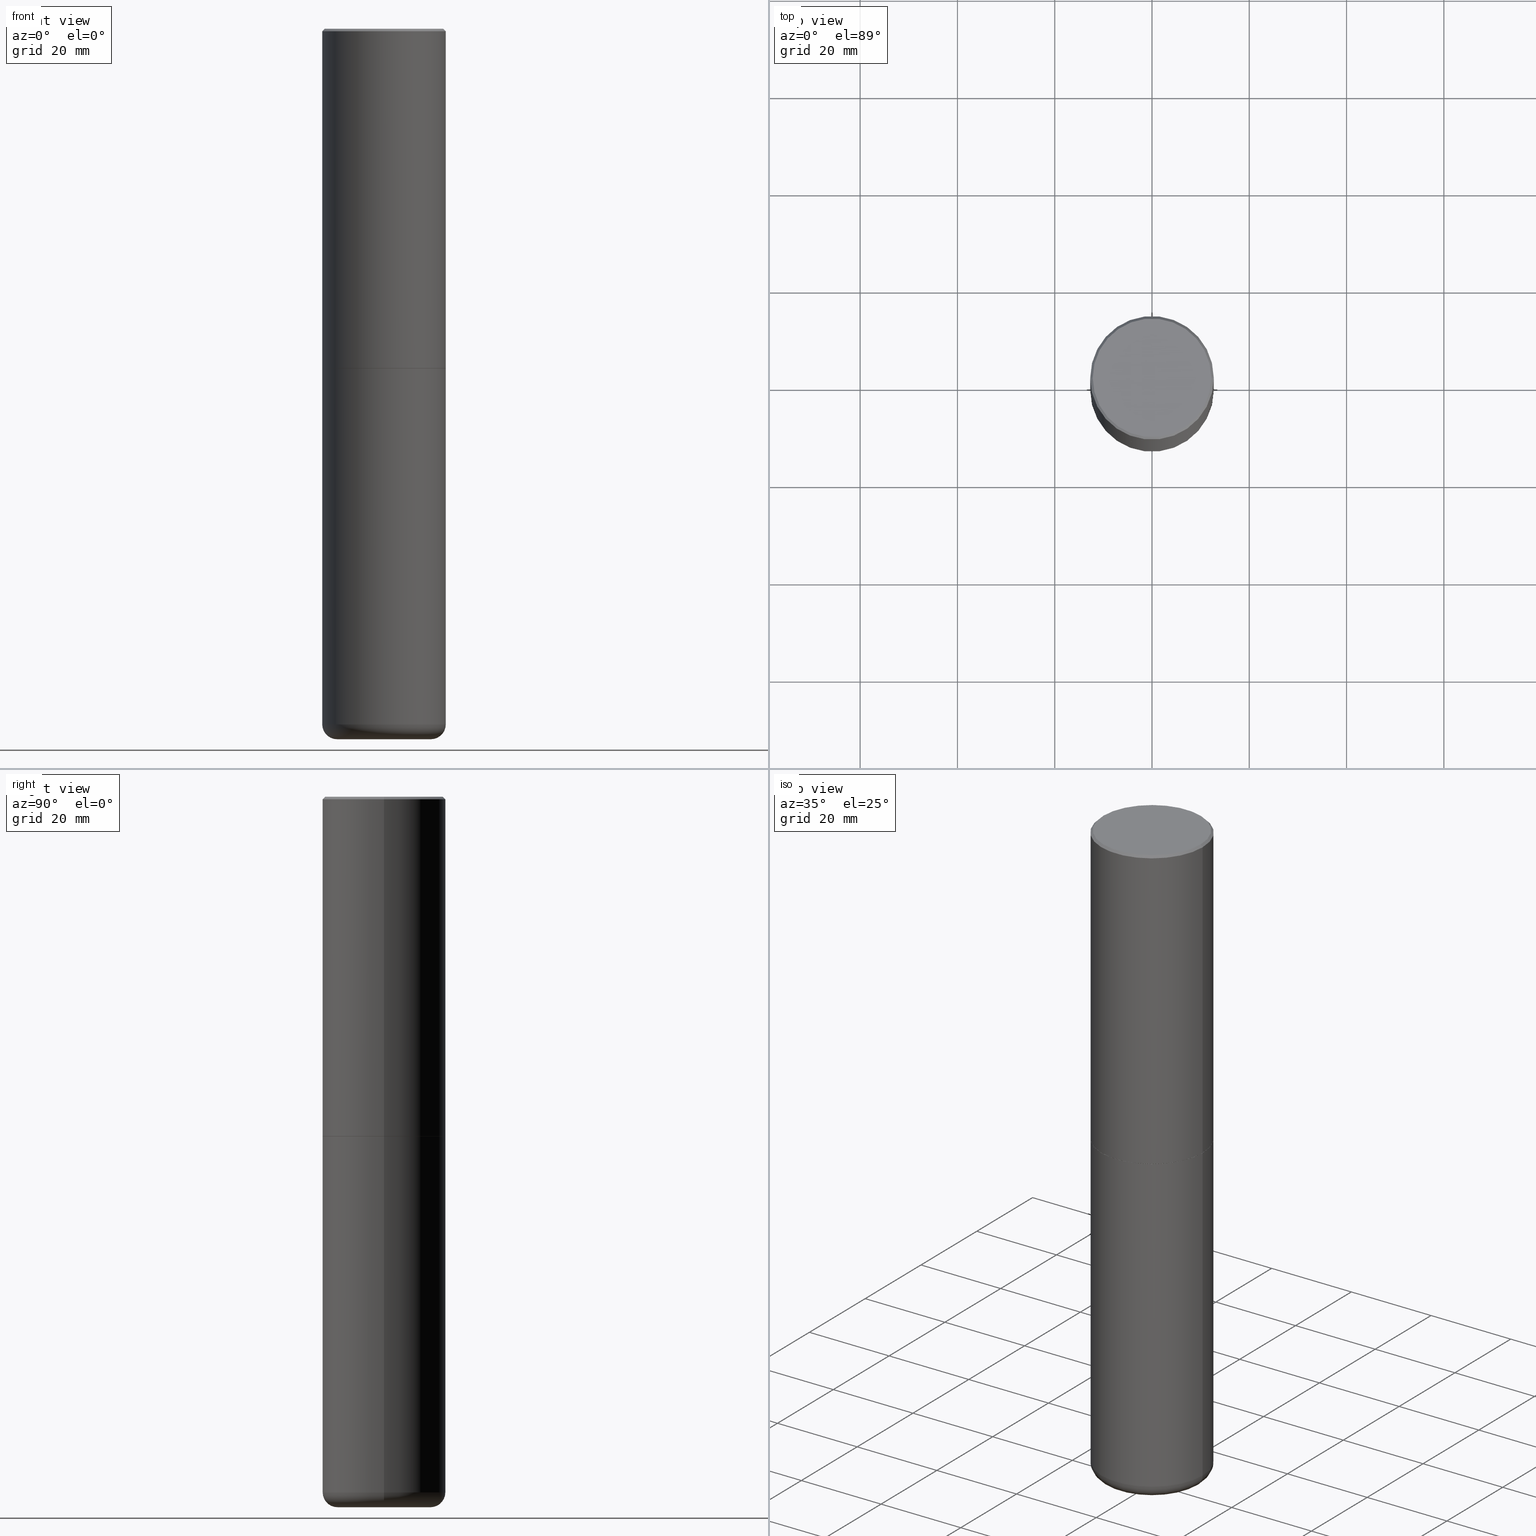
[diagram: canonical four-view strip — front | top / right | iso, engineering-drawing reading convention]
A machine part, canonical four-view strip (front | top / right | iso — engineering-drawing reading convention). The complete STEP part file that produces these views, byte-faithful:
ISO-10303-21;
HEADER;
FILE_DESCRIPTION (( 'STEP AP203' ),
    '1' );
FILE_NAME ('77491.STEP',
    '2024-05-02T19:49:53',
    ( '' ),
    ( '' ),
    'SwSTEP 2.0',
    'SolidWorks 2023',
    '' );
FILE_SCHEMA (( 'CONFIG_CONTROL_DESIGN' ));
ENDSEC;

DATA;
#1 = VERTEX_POINT ( 'NONE', #17 ) ;
#2 = DIRECTION ( 'NONE',  ( 1.000000000000000000, 0.000000000000000000, 0.000000000000000000 ) ) ;
#3 = FACE_OUTER_BOUND ( 'NONE', #75, .T. ) ;
#4 = VECTOR ( 'NONE', #201, 39.37007874015748143 ) ;
#5 = DIRECTION ( 'NONE',  ( -1.000000000000000000, 7.105427357600997914E-15, 0.000000000000000000 ) ) ;
#6 = CALENDAR_DATE ( 2024, 2, 5 ) ;
#7 = VECTOR ( 'NONE', #277, 39.37007874015748143 ) ;
#8 = ORIENTED_EDGE ( 'NONE', *, *, #94, .F. ) ;
#9 = PERSON_AND_ORGANIZATION_ROLE ( 'creator' ) ;
#10 = CYLINDRICAL_SURFACE ( 'NONE', #343, 0.5000000000000001110 ) ;
#11 = DIRECTION ( 'NONE',  ( -2.445468806185136597E-29, 3.491481338843145583E-15, 1.000000000000000000 ) ) ;
#12 = CARTESIAN_POINT ( 'NONE',  ( 0.000000000000000000, 0.000000000000000000, 0.000000000000000000 ) ) ;
#13 = EDGE_LOOP ( 'NONE', ( #155, #271, #286, #25 ) ) ;
#14 = PERSON_AND_ORGANIZATION_ROLE ( 'creator' ) ;
#15 = FACE_OUTER_BOUND ( 'NONE', #307, .T. ) ;
#16 = CC_DESIGN_DATE_AND_TIME_ASSIGNMENT ( #130, #261, ( #217 ) ) ;
#17 = CARTESIAN_POINT ( 'NONE',  ( 0.4800000000000000933, -3.396558832296482493E-15, -1.067128122524866809E-16 ) ) ;
#18 = APPROVAL_DATE_TIME ( #200, #33 ) ;
#19 = CARTESIAN_POINT ( 'NONE',  ( 6.725039217009123399E-29, -9.601573681818648281E-15, -2.749999999999999556 ) ) ;
#20 = AXIS2_PLACEMENT_3D ( 'NONE', #131, #344, #28 ) ;
#21 = PRODUCT_DEFINITION_FORMATION_WITH_SPECIFIED_SOURCE ( 'ANY', '', #172, .NOT_KNOWN. ) ;
#22 = AXIS2_PLACEMENT_3D ( 'NONE', #392, #99, #119 ) ;
#23 = DIRECTION ( 'NONE',  ( -0.7071067811867406405, 7.493145998871051513E-15, 0.7071067811863543939 ) ) ;
#24 = DIRECTION ( 'NONE',  ( 1.000000000000000000, -6.982962677686266711E-15, 4.876176775795935793E-29 ) ) ;
#25 = ORIENTED_EDGE ( 'NONE', *, *, #209, .F. ) ;
#26 = EDGE_CURVE ( 'NONE', #113, #124, #36, .T. ) ;
#27 = DATE_AND_TIME ( #320, #415 ) ;
#28 = DIRECTION ( 'NONE',  ( 1.000000000000000000, -6.982962677686273021E-15, 0.000000000000000000 ) ) ;
#29 = DIRECTION ( 'NONE',  ( -6.982962677686266711E-15, -1.000000000000000000, 3.491481338843145583E-15 ) ) ;
#30 = CARTESIAN_POINT ( 'NONE',  ( -0.4989999999999999991, -6.055965430375748360E-15, -2.749999999999999556 ) ) ;
#31 = DIRECTION ( 'NONE',  ( -2.445468806185136597E-29, 3.491481338843145583E-15, 1.000000000000000000 ) ) ;
#32 = CIRCLE ( 'NONE', #20, 0.3799999999999999489 ) ;
#33 = APPROVAL ( #92, 'UNSPECIFIED' ) ;
#34 = DESIGN_CONTEXT ( 'detailed design', #74, 'design' ) ;
#35 =( LENGTH_UNIT ( ) NAMED_UNIT ( * ) SI_UNIT ( $, .METRE. ) );
#36 = CIRCLE ( 'NONE', #198, 0.5000000000000000000 ) ;
#37 = CIRCLE ( 'NONE', #140, 0.5000000000000000000 ) ;
#38 = EDGE_CURVE ( 'NONE', #363, #226, #64, .T. ) ;
#39 = EDGE_LOOP ( 'NONE', ( #339, #73 ) ) ;
#40 = LINE ( 'NONE', #169, #352 ) ;
#41 = EDGE_LOOP ( 'NONE', ( #58, #311, #283, #190 ) ) ;
#42 = APPROVAL ( #147, 'UNSPECIFIED' ) ;
#43 = ADVANCED_FACE ( 'NONE', ( #146 ), #345, .T. ) ;
#44 = CC_DESIGN_DATE_AND_TIME_ASSIGNMENT ( #27, #117, ( #267 ) ) ;
#45 = CIRCLE ( 'NONE', #170, 0.4800000000000000933 ) ;
#46 =( GEOMETRIC_REPRESENTATION_CONTEXT ( 3 ) GLOBAL_UNCERTAINTY_ASSIGNED_CONTEXT ( ( #266 ) ) GLOBAL_UNIT_ASSIGNED_CONTEXT ( ( #245, #297, #416 ) ) REPRESENTATION_CONTEXT ( 'NONE', 'WORKASPACE' ) );
#47 = ORIENTED_EDGE ( 'NONE', *, *, #70, .F. ) ;
#48 = COORDINATED_UNIVERSAL_TIME_OFFSET ( 5, 0, .BEHIND. ) ;
#49 = VECTOR ( 'NONE', #143, 39.37007874015748143 ) ;
#50 = ORIENTED_EDGE ( 'NONE', *, *, #154, .F. ) ;
#51 = DATE_AND_TIME ( #340, #239 ) ;
#52 = PLANE ( 'NONE',  #111 ) ;
#53 = CC_DESIGN_SECURITY_CLASSIFICATION ( #217, ( #21 ) ) ;
#54 = DIRECTION ( 'NONE',  ( 2.445468806185136597E-29, -3.491481338843145583E-15, -1.000000000000000000 ) ) ;
#55 = ORIENTED_EDGE ( 'NONE', *, *, #178, .F. ) ;
#56 = DIRECTION ( 'NONE',  ( 1.000000000000000000, -6.982962677686266711E-15, 0.000000000000000000 ) ) ;
#57 = PRODUCT_DEFINITION_SHAPE ( 'NONE', 'NONE',  #267 ) ;
#58 = ORIENTED_EDGE ( 'NONE', *, *, #76, .F. ) ;
#59 = COORDINATED_UNIVERSAL_TIME_OFFSET ( 5, 0, .BEHIND. ) ;
#60 = DIRECTION ( 'NONE',  ( 1.000000000000000000, -6.982962677686266711E-15, 0.000000000000000000 ) ) ;
#61 = CC_DESIGN_PERSON_AND_ORGANIZATION_ASSIGNMENT ( #315, #9, ( #21 ) ) ;
#62 = EDGE_LOOP ( 'NONE', ( #391, #356, #301, #47 ) ) ;
#63 = APPROVAL_DATE_TIME ( #51, #42 ) ;
#64 = CIRCLE ( 'NONE', #388, 0.1199999999999998845 ) ;
#65 = CARTESIAN_POINT ( 'NONE',  ( 2.609628535838049452E-45, -3.725857925951117973E-31, -1.067128122525102851E-16 ) ) ;
#66 = CARTESIAN_POINT ( 'NONE',  ( 0.000000000000000000, 0.000000000000000000, 0.000000000000000000 ) ) ;
#67 = EDGE_CURVE ( 'NONE', #124, #113, #100, .T. ) ;
#68 = AXIS2_PLACEMENT_3D ( 'NONE', #168, #54, #188 ) ;
#69 = APPROVAL_PERSON_ORGANIZATION ( #373, #42, #332 ) ;
#70 = EDGE_CURVE ( 'NONE', #329, #218, #234, .T. ) ;
#71 = CLOSED_SHELL ( 'NONE', ( #380, #43, #141, #136, #276, #83 ) ) ;
#72 = CARTESIAN_POINT ( 'NONE',  ( 0.3799999999999999489, -2.231056575520768651E-14, -5.629999999999999893 ) ) ;
#73 = ORIENTED_EDGE ( 'NONE', *, *, #154, .T. ) ;
#74 = APPLICATION_CONTEXT ( 'configuration controlled 3d designs of mechanical parts and assemblies' ) ;
#75 = EDGE_LOOP ( 'NONE', ( #385, #121, #194, #84 ) ) ;
#76 = EDGE_CURVE ( 'NONE', #1, #107, #40, .T. ) ;
#77 = CARTESIAN_POINT ( 'NONE',  ( 1.406144563556453543E-28, -2.007601769834808621E-14, -5.750000000000000000 ) ) ;
#78 = TOROIDAL_SURFACE ( 'NONE', #317, 0.3799999999999999489, 0.1199999999999998845 ) ;
#79 = FACE_OUTER_BOUND ( 'NONE', #268, .T. ) ;
#80 = EDGE_LOOP ( 'NONE', ( #50, #222, #186, #389 ) ) ;
#81 = CARTESIAN_POINT ( 'NONE',  ( 0.3799999999999999489, -2.272954351586886946E-14, -5.750000000000000000 ) ) ;
#82 = APPLICATION_CONTEXT ( 'configuration controlled 3d designs of mechanical parts and assemblies' ) ;
#83 = ADVANCED_FACE ( 'NONE', ( #409 ), #242, .T. ) ;
#84 = ORIENTED_EDGE ( 'NONE', *, *, #325, .F. ) ;
#85 = PERSON_AND_ORGANIZATION ( #171, #176 ) ;
#86 = CARTESIAN_POINT ( 'NONE',  ( 1.376798937882231913E-28, -1.965703993768690642E-14, -5.629999999999999893 ) ) ;
#87 = DIRECTION ( 'NONE',  ( -2.445468806185136597E-29, 3.491481338843145583E-15, 1.000000000000000000 ) ) ;
#88 = ORIENTED_EDGE ( 'NONE', *, *, #418, .T. ) ;
#89 = DIRECTION ( 'NONE',  ( 1.000000000000000000, -6.982962677686267499E-15, 4.876176775795935793E-29 ) ) ;
#90 = CARTESIAN_POINT ( 'NONE',  ( -0.5000000000000000000, -1.107659313095227642E-14, -2.749999999999999556 ) ) ;
#91 = ORIENTED_EDGE ( 'NONE', *, *, #209, .T. ) ;
#92 = APPROVAL_STATUS ( 'not_yet_approved' ) ;
#93 = ADVANCED_FACE ( 'NONE', ( #15 ), #264, .F. ) ;
#94 = EDGE_CURVE ( 'NONE', #107, #350, #300, .T. ) ;
#95 = DIRECTION ( 'NONE',  ( 1.000000000000000000, -6.982962677686266711E-15, 4.874852205035275907E-29 ) ) ;
#96 = ORIENTED_EDGE ( 'NONE', *, *, #174, .T. ) ;
#97 = APPROVAL_DATE_TIME ( #304, #212 ) ;
#98 = LINE ( 'NONE', #405, #4 ) ;
#99 = DIRECTION ( 'NONE',  ( -2.445468806185136597E-29, 3.491481338843145583E-15, 1.000000000000000000 ) ) ;
#100 = CIRCLE ( 'NONE', #137, 0.5000000000000000000 ) ;
#101 = CIRCLE ( 'NONE', #285, 0.3799999999999999489 ) ;
#102 = DIRECTION ( 'NONE',  ( 1.000000000000000000, -6.982962677686267499E-15, 4.876176775795935793E-29 ) ) ;
#103 = FACE_OUTER_BOUND ( 'NONE', #402, .T. ) ;
#104 = EDGE_CURVE ( 'NONE', #109, #107, #98, .T. ) ;
#105 = VECTOR ( 'NONE', #23, 39.37007874015748143 ) ;
#106 = AXIS2_PLACEMENT_3D ( 'NONE', #12, #153, #24 ) ;
#107 = VERTEX_POINT ( 'NONE', #228 ) ;
#108 = CC_DESIGN_PERSON_AND_ORGANIZATION_ASSIGNMENT ( #360, #161, ( #21 ) ) ;
#109 = VERTEX_POINT ( 'NONE', #163 ) ;
#110 = CARTESIAN_POINT ( 'NONE',  ( 6.722593748202938917E-29, -9.598082200479805274E-15, -2.748999999999999666 ) ) ;
#111 = AXIS2_PLACEMENT_3D ( 'NONE', #390, #254, #192 ) ;
#112 = CIRCLE ( 'NONE', #383, 0.5000000000000003331 ) ;
#113 = VERTEX_POINT ( 'NONE', #321 ) ;
#114 = COORDINATED_UNIVERSAL_TIME_OFFSET ( 5, 0, .BEHIND. ) ;
#115 = DIRECTION ( 'NONE',  ( -2.445468806185136597E-29, 3.491481338843145583E-15, 1.000000000000000000 ) ) ;
#116 = CARTESIAN_POINT ( 'NONE',  ( 6.725039217009123399E-29, -9.601573681818648281E-15, -2.749999999999999556 ) ) ;
#117 = DATE_TIME_ROLE ( 'creation_date' ) ;
#118 = DIRECTION ( 'NONE',  ( 1.000000000000000000, -6.982962677686269077E-15, 0.000000000000000000 ) ) ;
#119 = DIRECTION ( 'NONE',  ( 1.000000000000000000, -6.982962677686263555E-15, 0.000000000000000000 ) ) ;
#120 = PRODUCT_RELATED_PRODUCT_CATEGORY ( 'detail', '', ( #172 ) ) ;
#121 = ORIENTED_EDGE ( 'NONE', *, *, #328, .T. ) ;
#122 = CARTESIAN_POINT ( 'NONE',  ( -0.4999999999999998335, -1.610432625888640549E-14, -5.629999999999999893 ) ) ;
#123 = AXIS2_PLACEMENT_3D ( 'NONE', #401, #127, #135 ) ;
#124 = VERTEX_POINT ( 'NONE', #90 ) ;
#125 = PERSON_AND_ORGANIZATION ( #171, #176 ) ;
#126 = DIRECTION ( 'NONE',  ( 2.445468806185136597E-29, -3.491481338843145583E-15, -1.000000000000000000 ) ) ;
#127 = DIRECTION ( 'NONE',  ( 2.438088387897960049E-29, -3.491481338843145188E-15, -1.000000000000000000 ) ) ;
#128 = CARTESIAN_POINT ( 'NONE',  ( -0.3799999999999999489, -1.674014078067305588E-14, -5.750000000000000000 ) ) ;
#129 = DIRECTION ( 'NONE',  ( -2.445468806185136597E-29, 3.491481338843145583E-15, 1.000000000000000000 ) ) ;
#130 = DATE_AND_TIME ( #6, #269 ) ;
#131 = CARTESIAN_POINT ( 'NONE',  ( 1.406144563556453543E-28, -2.007601769834808621E-14, -5.750000000000000000 ) ) ;
#132 = DIRECTION ( 'NONE',  ( -1.000000000000000000, 6.982962677686265922E-15, -4.876176775795935793E-29 ) ) ;
#133 = AXIS2_PLACEMENT_3D ( 'NONE', #66, #378, #102 ) ;
#134 = CIRCLE ( 'NONE', #400, 0.4989999999999999991 ) ;
#135 = DIRECTION ( 'NONE',  ( -1.000000000000000000, 6.982962677686265922E-15, -4.876176775795935793E-29 ) ) ;
#136 = ADVANCED_FACE ( 'NONE', ( #103 ), #157, .T. ) ;
#137 = AXIS2_PLACEMENT_3D ( 'NONE', #116, #31, #236 ) ;
#138 = DIRECTION ( 'NONE',  ( -2.445468806185136597E-29, 3.491481338843145583E-15, 1.000000000000000000 ) ) ;
#139 = AXIS2_PLACEMENT_3D ( 'NONE', #310, #11, #281 ) ;
#140 = AXIS2_PLACEMENT_3D ( 'NONE', #259, #302, #60 ) ;
#141 = ADVANCED_FACE ( 'NONE', ( #224 ), #289, .F. ) ;
#142 = ORIENTED_EDGE ( 'NONE', *, *, #294, .F. ) ;
#143 = DIRECTION ( 'NONE',  ( -0.7071067811865461294, 2.468850131082242072E-15, -0.7071067811865489050 ) ) ;
#144 = AXIS2_PLACEMENT_3D ( 'NONE', #72, #29, #167 ) ;
#145 = CC_DESIGN_APPROVAL ( #42, ( #217 ) ) ;
#146 = FACE_OUTER_BOUND ( 'NONE', #62, .T. ) ;
#147 = APPROVAL_STATUS ( 'not_yet_approved' ) ;
#148 = FACE_OUTER_BOUND ( 'NONE', #299, .T. ) ;
#149 = FACE_OUTER_BOUND ( 'NONE', #13, .T. ) ;
#150 = VERTEX_POINT ( 'NONE', #407 ) ;
#151 = CARTESIAN_POINT ( 'NONE',  ( 0.000000000000000000, 0.000000000000000000, 0.000000000000000000 ) ) ;
#152 = CYLINDRICAL_SURFACE ( 'NONE', #133, 0.5000000000000001110 ) ;
#153 = DIRECTION ( 'NONE',  ( -2.445468806185136597E-29, 3.491481338843145583E-15, 1.000000000000000000 ) ) ;
#154 = EDGE_CURVE ( 'NONE', #1, #331, #45, .T. ) ;
#155 = ORIENTED_EDGE ( 'NONE', *, *, #417, .T. ) ;
#156 = DIRECTION ( 'NONE',  ( -2.445468806185136877E-29, 3.491481338843145188E-15, 1.000000000000000000 ) ) ;
#157 = CYLINDRICAL_SURFACE ( 'NONE', #274, 0.5000000000000000000 ) ;
#158 = CONICAL_SURFACE ( 'NONE', #410, 0.5000000000000000000, 0.7853981633974463916 ) ;
#159 = CONICAL_SURFACE ( 'NONE', #68, 0.5000000000000000000, 0.7853981633974463916 ) ;
#160 = CARTESIAN_POINT ( 'NONE',  ( 6.725039217009123399E-29, -9.601573681818648281E-15, -2.749999999999999556 ) ) ;
#161 = PERSON_AND_ORGANIZATION_ROLE ( 'design_supplier' ) ;
#162 = CC_DESIGN_APPROVAL ( #212, ( #21 ) ) ;
#163 = CARTESIAN_POINT ( 'NONE',  ( 0.5000000000000003331, -1.308956353932294179E-14, -2.748999999999999666 ) ) ;
#164 = ORIENTED_EDGE ( 'NONE', *, *, #328, .F. ) ;
#165 = SHAPE_DEFINITION_REPRESENTATION ( #57, #322 ) ;
#166 = CARTESIAN_POINT ( 'NONE',  ( 0.5000000000000000000, -3.491481338843133355E-15, 2.438088387897967896E-29 ) ) ;
#167 = DIRECTION ( 'NONE',  ( 1.000000000000000000, -6.982962677686274599E-15, 0.000000000000000000 ) ) ;
#168 = CARTESIAN_POINT ( 'NONE',  ( 4.890937612370299433E-31, -6.982962677686328587E-17, -0.02000000000000010797 ) ) ;
#169 = CARTESIAN_POINT ( 'NONE',  ( 0.5000000000000000000, -3.500078625662629079E-15, -0.02000000000000010797 ) ) ;
#170 = AXIS2_PLACEMENT_3D ( 'NONE', #65, #338, #95 ) ;
#171 = PERSON ( 'UNSPECIFIED', 'UNSPECIFIED', 'UNSPECIFIED', ('UNSPECIFIED'), ('UNSPECIFIED'), ('UNSPECIFIED') ) ;
#172 = PRODUCT ( '77491', '77491', '', ( #241 ) ) ;
#173 = MANIFOLD_SOLID_BREP ( 'Body-Move/Copy2[1]', #71 ) ;
#174 = EDGE_CURVE ( 'NONE', #150, #253, #197, .T. ) ;
#175 = AXIS2_PLACEMENT_3D ( 'NONE', #232, #375, #396 ) ;
#176 = ORGANIZATION ( 'UNSPECIFIED', 'UNSPECIFIED', '' ) ;
#177 = ORIENTED_EDGE ( 'NONE', *, *, #306, .F. ) ;
#178 = EDGE_CURVE ( 'NONE', #329, #363, #32, .T. ) ;
#179 = ORIENTED_EDGE ( 'NONE', *, *, #38, .F. ) ;
#180 = CC_DESIGN_PERSON_AND_ORGANIZATION_ASSIGNMENT ( #308, #279, ( #217 ) ) ;
#181 = ORIENTED_EDGE ( 'NONE', *, *, #397, .T. ) ;
#182 = CARTESIAN_POINT ( 'NONE',  ( -0.5000000000000000000, 3.552713678800500929E-15, -2.459467545127452891E-29 ) ) ;
#183 = EDGE_LOOP ( 'NONE', ( #88, #324, #8, #296 ) ) ;
#184 = APPROVAL_ROLE ( '' ) ;
#185 = LOCAL_TIME ( 15, 49, 53.00000000000000000, #59 ) ;
#186 = ORIENTED_EDGE ( 'NONE', *, *, #94, .T. ) ;
#187 = DIRECTION ( 'NONE',  ( -2.445468806185136597E-29, 3.491481338843145583E-15, 1.000000000000000000 ) ) ;
#188 = DIRECTION ( 'NONE',  ( -1.000000000000000000, 6.982962677686266711E-15, 0.000000000000000000 ) ) ;
#189 = CYLINDRICAL_SURFACE ( 'NONE', #106, 0.5000000000000000000 ) ;
#190 = ORIENTED_EDGE ( 'NONE', *, *, #349, .T. ) ;
#191 = COORDINATED_UNIVERSAL_TIME_OFFSET ( 5, 0, .BEHIND. ) ;
#192 = DIRECTION ( 'NONE',  ( -1.000000000000000000, 6.982962677686265922E-15, -4.876176775795935793E-29 ) ) ;
#193 = DIRECTION ( 'NONE',  ( -2.445468806185136597E-29, 3.491481338843145583E-15, 1.000000000000000000 ) ) ;
#194 = ORIENTED_EDGE ( 'NONE', *, *, #413, .T. ) ;
#195 = CALENDAR_DATE ( 2024, 2, 5 ) ;
#196 = CARTESIAN_POINT ( 'NONE',  ( -0.5000000000000000000, 3.421651712066270057E-15, -0.02000000000000010797 ) ) ;
#197 = LINE ( 'NONE', #30, #105 ) ;
#198 = AXIS2_PLACEMENT_3D ( 'NONE', #160, #129, #260 ) ;
#199 = ORIENTED_EDGE ( 'NONE', *, *, #418, .F. ) ;
#200 = DATE_AND_TIME ( #288, #235 ) ;
#201 = DIRECTION ( 'NONE',  ( -2.445468806185136877E-29, 3.491481338843145188E-15, 1.000000000000000000 ) ) ;
#202 = FACE_OUTER_BOUND ( 'NONE', #80, .T. ) ;
#203 = DIRECTION ( 'NONE',  ( 1.000000000000000000, -6.982962677686265133E-15, 4.883557194083112340E-29 ) ) ;
#204 = AXIS2_PLACEMENT_3D ( 'NONE', #255, #193, #366 ) ;
#205 = CIRCLE ( 'NONE', #22, 0.4999999999999999445 ) ;
#206 = CC_DESIGN_PERSON_AND_ORGANIZATION_ASSIGNMENT ( #85, #14, ( #267 ) ) ;
#207 = ORIENTED_EDGE ( 'NONE', *, *, #237, .T. ) ;
#208 = CLOSED_SHELL ( 'NONE', ( #244, #219, #229, #243, #346, #355, #93, #295 ) ) ;
#209 = EDGE_CURVE ( 'NONE', #218, #113, #406, .T. ) ;
#210 = EDGE_LOOP ( 'NONE', ( #179, #181, #367, #215 ) ) ;
#211 = CIRCLE ( 'NONE', #326, 0.5000000000000003331 ) ;
#212 = APPROVAL ( #368, 'UNSPECIFIED' ) ;
#213 = CARTESIAN_POINT ( 'NONE',  ( -0.5000000000000001110, 3.552713678800501718E-15, -2.459467545127453732E-29 ) ) ;
#214 = EDGE_LOOP ( 'NONE', ( #412, #335 ) ) ;
#215 = ORIENTED_EDGE ( 'NONE', *, *, #237, .F. ) ;
#216 = DIRECTION ( 'NONE',  ( -2.445468806185136597E-29, 3.491481338843145583E-15, 1.000000000000000000 ) ) ;
#217 = SECURITY_CLASSIFICATION ( '', '', #403 ) ;
#218 = VERTEX_POINT ( 'NONE', #379 ) ;
#219 = ADVANCED_FACE ( 'NONE', ( #263 ), #152, .T. ) ;
#220 = FACE_OUTER_BOUND ( 'NONE', #41, .T. ) ;
#221 = DIRECTION ( 'NONE',  ( 1.000000000000000000, -6.982962677686273021E-15, 0.000000000000000000 ) ) ;
#222 = ORIENTED_EDGE ( 'NONE', *, *, #76, .T. ) ;
#223 = LINE ( 'NONE', #213, #247 ) ;
#224 = FACE_OUTER_BOUND ( 'NONE', #214, .T. ) ;
#225 = PERSON_AND_ORGANIZATION ( #171, #176 ) ;
#226 = VERTEX_POINT ( 'NONE', #122 ) ;
#227 = APPROVAL_ROLE ( '' ) ;
#228 = CARTESIAN_POINT ( 'NONE',  ( 0.5000000000000000000, -3.500078625662629079E-15, -0.02000000000000010797 ) ) ;
#229 = ADVANCED_FACE ( 'NONE', ( #202 ), #159, .T. ) ;
#230 = AXIS2_PLACEMENT_3D ( 'NONE', #262, #370, #56 ) ;
#231 = CIRCLE ( 'NONE', #408, 0.4989999999999999991 ) ;
#232 = CARTESIAN_POINT ( 'NONE',  ( 6.725039217009123399E-29, -9.601573681818648281E-15, -2.749999999999999556 ) ) ;
#233 = EDGE_CURVE ( 'NONE', #331, #1, #382, .T. ) ;
#234 = CIRCLE ( 'NONE', #144, 0.1199999999999998845 ) ;
#235 = LOCAL_TIME ( 15, 49, 53.00000000000000000, #191 ) ;
#236 = DIRECTION ( 'NONE',  ( 1.000000000000000000, -6.982962677686266711E-15, 0.000000000000000000 ) ) ;
#237 = EDGE_CURVE ( 'NONE', #226, #218, #364, .T. ) ;
#238 = CONICAL_SURFACE ( 'NONE', #265, 0.4989999999999999991, 0.7853981633977213939 ) ;
#239 = LOCAL_TIME ( 15, 49, 53.00000000000000000, #275 ) ;
#240 = ORIENTED_EDGE ( 'NONE', *, *, #325, .T. ) ;
#241 = MECHANICAL_CONTEXT ( 'NONE', #82, 'mechanical' ) ;
#242 = PLANE ( 'NONE',  #377 ) ;
#243 = ADVANCED_FACE ( 'NONE', ( #220 ), #158, .T. ) ;
#244 = ADVANCED_FACE ( 'NONE', ( #148 ), #238, .T. ) ;
#245 =( CONVERSION_BASED_UNIT ( 'INCH', #384 ) LENGTH_UNIT ( ) NAMED_UNIT ( #249 ) );
#246 = CARTESIAN_POINT ( 'NONE',  ( 6.725039217009123399E-29, -9.601573681818648281E-15, -2.749999999999999556 ) ) ;
#247 = VECTOR ( 'NONE', #156, 39.37007874015748143 ) ;
#248 = ORIENTED_EDGE ( 'NONE', *, *, #67, .F. ) ;
#249 = DIMENSIONAL_EXPONENTS ( 1.000000000000000000, 0.000000000000000000, 0.000000000000000000, 0.000000000000000000, 0.000000000000000000, 0.000000000000000000, 0.000000000000000000 ) ;
#250 = CARTESIAN_POINT ( 'NONE',  ( 1.376798937882231913E-28, -1.965703993768690642E-14, -5.629999999999999893 ) ) ;
#251 = CARTESIAN_POINT ( 'NONE',  ( -0.5000000000000000000, 3.421651712066270057E-15, -0.02000000000000010797 ) ) ;
#252 = EDGE_CURVE ( 'NONE', #331, #350, #273, .T. ) ;
#253 = VERTEX_POINT ( 'NONE', #330 ) ;
#254 = DIRECTION ( 'NONE',  ( 2.438088387897960049E-29, -3.491481338843145188E-15, -1.000000000000000000 ) ) ;
#255 = CARTESIAN_POINT ( 'NONE',  ( 1.376798937882231913E-28, -1.965703993768690642E-14, -5.629999999999999893 ) ) ;
#256 = AXIS2_PLACEMENT_3D ( 'NONE', #250, #138, #203 ) ;
#257 = ORIENTED_EDGE ( 'NONE', *, *, #270, .F. ) ;
#258 = PERSON_AND_ORGANIZATION ( #171, #176 ) ;
#259 = CARTESIAN_POINT ( 'NONE',  ( 4.890937612370299433E-31, -6.982962677686328587E-17, -0.02000000000000010797 ) ) ;
#260 = DIRECTION ( 'NONE',  ( 1.000000000000000000, -6.982962677686266711E-15, 0.000000000000000000 ) ) ;
#261 = DATE_TIME_ROLE ( 'classification_date' ) ;
#262 = CARTESIAN_POINT ( 'NONE',  ( 4.890937612370299433E-31, -6.982962677686328587E-17, -0.02000000000000010797 ) ) ;
#263 = FACE_OUTER_BOUND ( 'NONE', #183, .T. ) ;
#264 = PLANE ( 'NONE',  #175 ) ;
#265 = AXIS2_PLACEMENT_3D ( 'NONE', #246, #369, #118 ) ;
#266 = UNCERTAINTY_MEASURE_WITH_UNIT (LENGTH_MEASURE( 1.000000000000000082E-05 ), #245, 'distance_accuracy_value', 'NONE');
#267 = PRODUCT_DEFINITION ( 'UNKNOWN', '', #21, #34 ) ;
#268 = EDGE_LOOP ( 'NONE', ( #142, #240, #398, #337 ) ) ;
#269 = LOCAL_TIME ( 15, 49, 53.00000000000000000, #114 ) ;
#270 = EDGE_CURVE ( 'NONE', #226, #124, #361, .T. ) ;
#271 = ORIENTED_EDGE ( 'NONE', *, *, #270, .T. ) ;
#272 = DIRECTION ( 'NONE',  ( -2.445468806185136597E-29, 3.491481338843145583E-15, 1.000000000000000000 ) ) ;
#273 = LINE ( 'NONE', #251, #49 ) ;
#274 = AXIS2_PLACEMENT_3D ( 'NONE', #342, #292, #313 ) ;
#275 = COORDINATED_UNIVERSAL_TIME_OFFSET ( 5, 0, .BEHIND. ) ;
#276 = ADVANCED_FACE ( 'NONE', ( #316 ), #78, .T. ) ;
#277 = DIRECTION ( 'NONE',  ( 0.7071067811867406405, -2.468850131084279700E-15, 0.7071067811863543939 ) ) ;
#278 = ORIENTED_EDGE ( 'NONE', *, *, #306, .T. ) ;
#279 = PERSON_AND_ORGANIZATION_ROLE ( 'classification_officer' ) ;
#280 = DIRECTION ( 'NONE',  ( 1.000000000000000000, -6.982962677686269077E-15, 0.000000000000000000 ) ) ;
#281 = DIRECTION ( 'NONE',  ( 1.000000000000000000, -6.982962677686266711E-15, 4.874852205035275907E-29 ) ) ;
#282 = DIRECTION ( 'NONE',  ( -2.445468806185136597E-29, 3.491481338843145583E-15, 1.000000000000000000 ) ) ;
#283 = ORIENTED_EDGE ( 'NONE', *, *, #252, .T. ) ;
#284 = FACE_OUTER_BOUND ( 'NONE', #39, .T. ) ;
#285 = AXIS2_PLACEMENT_3D ( 'NONE', #290, #282, #221 ) ;
#286 = ORIENTED_EDGE ( 'NONE', *, *, #26, .F. ) ;
#287 = CC_DESIGN_PERSON_AND_ORGANIZATION_ASSIGNMENT ( #225, #371, ( #172 ) ) ;
#288 = CALENDAR_DATE ( 2024, 2, 5 ) ;
#289 = PLANE ( 'NONE',  #123 ) ;
#290 = CARTESIAN_POINT ( 'NONE',  ( 1.406144563556453543E-28, -2.007601769834808621E-14, -5.750000000000000000 ) ) ;
#291 = DIRECTION ( 'NONE',  ( -2.445468806185136877E-29, 3.491481338843145188E-15, 1.000000000000000000 ) ) ;
#292 = DIRECTION ( 'NONE',  ( -2.445468806185136597E-29, 3.491481338843145583E-15, 1.000000000000000000 ) ) ;
#293 = DIRECTION ( 'NONE',  ( 0.7071067811865461294, -7.319954787623251312E-15, -0.7071067811865489050 ) ) ;
#294 = EDGE_CURVE ( 'NONE', #253, #350, #223, .T. ) ;
#295 = ADVANCED_FACE ( 'NONE', ( #284 ), #52, .F. ) ;
#296 = ORIENTED_EDGE ( 'NONE', *, *, #104, .F. ) ;
#297 =( NAMED_UNIT ( * ) PLANE_ANGLE_UNIT ( ) SI_UNIT ( $, .RADIAN. ) );
#298 = MANIFOLD_SOLID_BREP ( 'Body-Move/Copy2[2]', #208 ) ;
#299 = EDGE_LOOP ( 'NONE', ( #278, #96, #199, #319 ) ) ;
#300 = CIRCLE ( 'NONE', #230, 0.5000000000000000000 ) ;
#301 = ORIENTED_EDGE ( 'NONE', *, *, #417, .F. ) ;
#302 = DIRECTION ( 'NONE',  ( -2.445468806185136597E-29, 3.491481338843145583E-15, 1.000000000000000000 ) ) ;
#303 = DIRECTION ( 'NONE',  ( 7.105427357601001859E-15, 1.000000000000000000, -3.491481338843145583E-15 ) ) ;
#304 = DATE_AND_TIME ( #195, #185 ) ;
#305 = DIRECTION ( 'NONE',  ( -1.000000000000000000, 6.982962677686266711E-15, 0.000000000000000000 ) ) ;
#306 = EDGE_CURVE ( 'NONE', #359, #150, #134, .T. ) ;
#307 = EDGE_LOOP ( 'NONE', ( #177, #164 ) ) ;
#308 = PERSON_AND_ORGANIZATION ( #171, #176 ) ;
#309 = DIRECTION ( 'NONE',  ( 1.000000000000000000, -6.982962677686269077E-15, 0.000000000000000000 ) ) ;
#310 = CARTESIAN_POINT ( 'NONE',  ( 2.609628535838049452E-45, -3.725857925951117973E-31, -1.067128122525102851E-16 ) ) ;
#311 = ORIENTED_EDGE ( 'NONE', *, *, #233, .F. ) ;
#312 = CARTESIAN_POINT ( 'NONE',  ( 6.725039217009123399E-29, -9.601573681818648281E-15, -2.749999999999999556 ) ) ;
#313 = DIRECTION ( 'NONE',  ( 1.000000000000000000, -6.982962677686266711E-15, 4.876176775795935793E-29 ) ) ;
#314 = ORIENTED_EDGE ( 'NONE', *, *, #397, .F. ) ;
#315 = PERSON_AND_ORGANIZATION ( #171, #176 ) ;
#316 = FACE_OUTER_BOUND ( 'NONE', #210, .T. ) ;
#317 = AXIS2_PLACEMENT_3D ( 'NONE', #86, #216, #333 ) ;
#318 = DIRECTION ( 'NONE',  ( 2.438088387897960049E-29, -3.491481338843145188E-15, -1.000000000000000000 ) ) ;
#319 = ORIENTED_EDGE ( 'NONE', *, *, #413, .F. ) ;
#320 = CALENDAR_DATE ( 2024, 2, 5 ) ;
#321 = CARTESIAN_POINT ( 'NONE',  ( 0.5000000000000000000, -1.309305502066178164E-14, -2.749999999999999556 ) ) ;
#322 = ADVANCED_BREP_SHAPE_REPRESENTATION ( '77491', ( #173, #298, #365 ), #46 ) ;
#323 = APPROVAL_PERSON_ORGANIZATION ( #258, #212, #184 ) ;
#324 = ORIENTED_EDGE ( 'NONE', *, *, #294, .T. ) ;
#325 = EDGE_CURVE ( 'NONE', #253, #109, #112, .T. ) ;
#326 = AXIS2_PLACEMENT_3D ( 'NONE', #362, #87, #387 ) ;
#327 = CARTESIAN_POINT ( 'NONE',  ( -0.4800000000000000933, 3.386736898677839197E-15, -1.067128122525338523E-16 ) ) ;
#328 = EDGE_CURVE ( 'NONE', #150, #359, #231, .T. ) ;
#329 = VERTEX_POINT ( 'NONE', #81 ) ;
#330 = CARTESIAN_POINT ( 'NONE',  ( -0.5000000000000003331, -1.281242234827828821E-15, -2.748999999999999666 ) ) ;
#331 = VERTEX_POINT ( 'NONE', #327 ) ;
#332 = APPROVAL_ROLE ( '' ) ;
#333 = DIRECTION ( 'NONE',  ( 1.000000000000000000, -6.982962677686265133E-15, 4.883557194083112340E-29 ) ) ;
#334 = AXIS2_PLACEMENT_3D ( 'NONE', #19, #386, #374 ) ;
#335 = ORIENTED_EDGE ( 'NONE', *, *, #67, .T. ) ;
#336 = CARTESIAN_POINT ( 'NONE',  ( 4.890937612370299433E-31, -6.982962677686328587E-17, -0.02000000000000010797 ) ) ;
#337 = ORIENTED_EDGE ( 'NONE', *, *, #349, .F. ) ;
#338 = DIRECTION ( 'NONE',  ( -2.445468806185136597E-29, 3.491481338843145583E-15, 1.000000000000000000 ) ) ;
#339 = ORIENTED_EDGE ( 'NONE', *, *, #233, .T. ) ;
#340 = CALENDAR_DATE ( 2024, 2, 5 ) ;
#341 = VECTOR ( 'NONE', #291, 39.37007874015748143 ) ;
#342 = CARTESIAN_POINT ( 'NONE',  ( 0.000000000000000000, 0.000000000000000000, 0.000000000000000000 ) ) ;
#343 = AXIS2_PLACEMENT_3D ( 'NONE', #151, #395, #89 ) ;
#344 = DIRECTION ( 'NONE',  ( -2.445468806185136597E-29, 3.491481338843145583E-15, 1.000000000000000000 ) ) ;
#345 = TOROIDAL_SURFACE ( 'NONE', #256, 0.3799999999999999489, 0.1199999999999998845 ) ;
#346 = ADVANCED_FACE ( 'NONE', ( #79 ), #10, .T. ) ;
#347 = CARTESIAN_POINT ( 'NONE',  ( 0.000000000000000000, 0.000000000000000000, 0.000000000000000000 ) ) ;
#348 = CC_DESIGN_APPROVAL ( #33, ( #267 ) ) ;
#349 = EDGE_CURVE ( 'NONE', #350, #107, #37, .T. ) ;
#350 = VERTEX_POINT ( 'NONE', #196 ) ;
#351 = DIRECTION ( 'NONE',  ( 0.000000000000000000, 0.000000000000000000, 1.000000000000000000 ) ) ;
#352 = VECTOR ( 'NONE', #293, 39.37007874015748143 ) ;
#353 = CARTESIAN_POINT ( 'NONE',  ( 6.725039217009123399E-29, -9.601573681818648281E-15, -2.749999999999999556 ) ) ;
#354 = APPROVAL_PERSON_ORGANIZATION ( #125, #33, #227 ) ;
#355 = ADVANCED_FACE ( 'NONE', ( #3 ), #411, .T. ) ;
#356 = ORIENTED_EDGE ( 'NONE', *, *, #38, .T. ) ;
#357 = DIRECTION ( 'NONE',  ( -2.445468806185136877E-29, 3.491481338843145188E-15, 1.000000000000000000 ) ) ;
#358 = LINE ( 'NONE', #376, #7 ) ;
#359 = VERTEX_POINT ( 'NONE', #404 ) ;
#360 = PERSON_AND_ORGANIZATION ( #171, #176 ) ;
#361 = LINE ( 'NONE', #182, #381 ) ;
#362 = CARTESIAN_POINT ( 'NONE',  ( 6.722593748202938917E-29, -9.598082200479805274E-15, -2.748999999999999666 ) ) ;
#363 = VERTEX_POINT ( 'NONE', #128 ) ;
#364 = CIRCLE ( 'NONE', #204, 0.4999999999999999445 ) ;
#365 = AXIS2_PLACEMENT_3D ( 'NONE', #347, #351, #2 ) ;
#366 = DIRECTION ( 'NONE',  ( 1.000000000000000000, -6.982962677686263555E-15, 0.000000000000000000 ) ) ;
#367 = ORIENTED_EDGE ( 'NONE', *, *, #70, .T. ) ;
#368 = APPROVAL_STATUS ( 'not_yet_approved' ) ;
#369 = DIRECTION ( 'NONE',  ( -2.445468806185136597E-29, 3.491481338843145583E-15, 1.000000000000000000 ) ) ;
#370 = DIRECTION ( 'NONE',  ( -2.445468806185136597E-29, 3.491481338843145583E-15, 1.000000000000000000 ) ) ;
#371 = PERSON_AND_ORGANIZATION_ROLE ( 'design_owner' ) ;
#372 = CARTESIAN_POINT ( 'NONE',  ( -0.3799999999999999489, -1.695697754179852647E-14, -5.629999999999999893 ) ) ;
#373 = PERSON_AND_ORGANIZATION ( #171, #176 ) ;
#374 = DIRECTION ( 'NONE',  ( 1.000000000000000000, -6.982962677686269077E-15, 0.000000000000000000 ) ) ;
#375 = DIRECTION ( 'NONE',  ( -2.438088387897960049E-29, 3.491481338843145188E-15, 1.000000000000000000 ) ) ;
#376 = CARTESIAN_POINT ( 'NONE',  ( 0.4989999999999999991, -1.308607205798409720E-14, -2.749999999999999556 ) ) ;
#377 = AXIS2_PLACEMENT_3D ( 'NONE', #77, #318, #132 ) ;
#378 = DIRECTION ( 'NONE',  ( -2.445468806185136597E-29, 3.491481338843145583E-15, 1.000000000000000000 ) ) ;
#379 = CARTESIAN_POINT ( 'NONE',  ( 0.4999999999999998335, -2.314852127653003978E-14, -5.629999999999999893 ) ) ;
#380 = ADVANCED_FACE ( 'NONE', ( #149 ), #189, .T. ) ;
#381 = VECTOR ( 'NONE', #357, 39.37007874015748143 ) ;
#382 = CIRCLE ( 'NONE', #139, 0.4800000000000000933 ) ;
#383 = AXIS2_PLACEMENT_3D ( 'NONE', #110, #115, #399 ) ;
#384 = LENGTH_MEASURE_WITH_UNIT ( LENGTH_MEASURE( 0.02539999999999999897 ), #35 );
#385 = ORIENTED_EDGE ( 'NONE', *, *, #174, .F. ) ;
#386 = DIRECTION ( 'NONE',  ( -2.445468806185136597E-29, 3.491481338843145583E-15, 1.000000000000000000 ) ) ;
#387 = DIRECTION ( 'NONE',  ( 1.000000000000000000, -6.982962677686265922E-15, 0.000000000000000000 ) ) ;
#388 = AXIS2_PLACEMENT_3D ( 'NONE', #372, #303, #5 ) ;
#389 = ORIENTED_EDGE ( 'NONE', *, *, #252, .F. ) ;
#390 = CARTESIAN_POINT ( 'NONE',  ( 3.351822085289408337E-15, 0.4800000000000000933, -1.729267448770965221E-15 ) ) ;
#391 = ORIENTED_EDGE ( 'NONE', *, *, #178, .T. ) ;
#392 = CARTESIAN_POINT ( 'NONE',  ( 1.376798937882231913E-28, -1.965703993768690642E-14, -5.629999999999999893 ) ) ;
#393 = EDGE_LOOP ( 'NONE', ( #55, #314 ) ) ;
#394 = APPLICATION_PROTOCOL_DEFINITION ( 'international standard', 'config_control_design', 1994, #74 ) ;
#395 = DIRECTION ( 'NONE',  ( -2.445468806185136597E-29, 3.491481338843145583E-15, 1.000000000000000000 ) ) ;
#396 = DIRECTION ( 'NONE',  ( 1.000000000000000000, -6.982962677686265922E-15, 4.876176775795935793E-29 ) ) ;
#397 = EDGE_CURVE ( 'NONE', #363, #329, #101, .T. ) ;
#398 = ORIENTED_EDGE ( 'NONE', *, *, #104, .T. ) ;
#399 = DIRECTION ( 'NONE',  ( 1.000000000000000000, -6.982962677686265922E-15, 0.000000000000000000 ) ) ;
#400 = AXIS2_PLACEMENT_3D ( 'NONE', #312, #187, #309 ) ;
#401 = CARTESIAN_POINT ( 'NONE',  ( 6.725039217009123399E-29, -9.601573681818648281E-15, -2.749999999999999556 ) ) ;
#402 = EDGE_LOOP ( 'NONE', ( #257, #207, #91, #248 ) ) ;
#403 = SECURITY_CLASSIFICATION_LEVEL ( 'unclassified' ) ;
#404 = CARTESIAN_POINT ( 'NONE',  ( 0.4989999999999999991, -1.308607205798409720E-14, -2.749999999999999556 ) ) ;
#405 = CARTESIAN_POINT ( 'NONE',  ( 0.5000000000000001110, -3.491481338843134539E-15, 2.438088387897968457E-29 ) ) ;
#406 = LINE ( 'NONE', #166, #341 ) ;
#407 = CARTESIAN_POINT ( 'NONE',  ( -0.4989999999999999991, -6.050666976027525169E-15, -2.749999999999999556 ) ) ;
#408 = AXIS2_PLACEMENT_3D ( 'NONE', #353, #272, #280 ) ;
#409 = FACE_OUTER_BOUND ( 'NONE', #393, .T. ) ;
#410 = AXIS2_PLACEMENT_3D ( 'NONE', #336, #126, #305 ) ;
#411 = CONICAL_SURFACE ( 'NONE', #334, 0.4989999999999999991, 0.7853981633977213939 ) ;
#412 = ORIENTED_EDGE ( 'NONE', *, *, #26, .T. ) ;
#413 = EDGE_CURVE ( 'NONE', #359, #109, #358, .T. ) ;
#414 = APPLICATION_PROTOCOL_DEFINITION ( 'international standard', 'config_control_design', 1994, #82 ) ;
#415 = LOCAL_TIME ( 15, 49, 53.00000000000000000, #48 ) ;
#416 =( NAMED_UNIT ( * ) SI_UNIT ( $, .STERADIAN. ) SOLID_ANGLE_UNIT ( ) );
#417 = EDGE_CURVE ( 'NONE', #218, #226, #205, .T. ) ;
#418 = EDGE_CURVE ( 'NONE', #109, #253, #211, .T. ) ;
ENDSEC;
END-ISO-10303-21;
